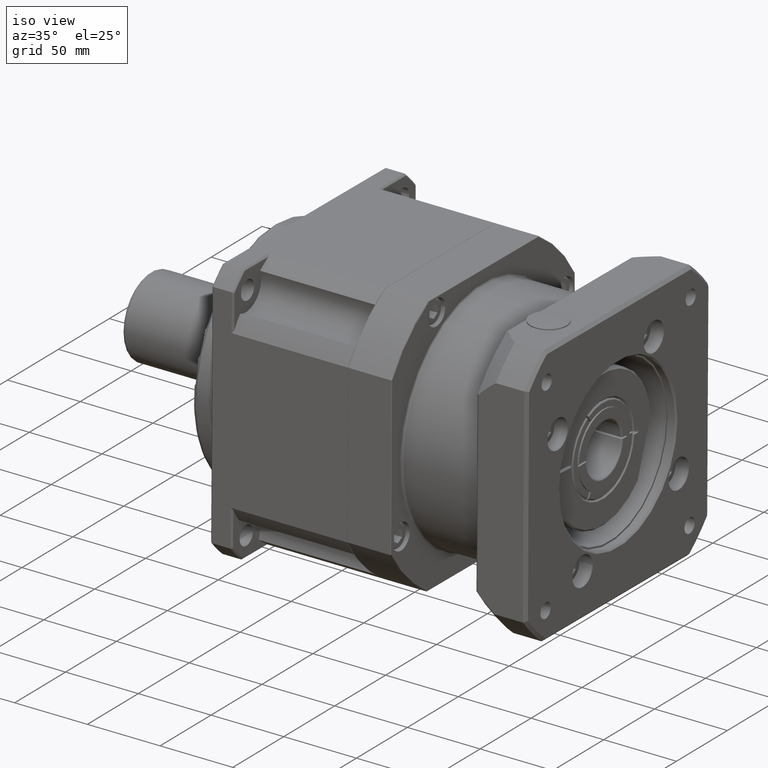
[diagram: clean part render]
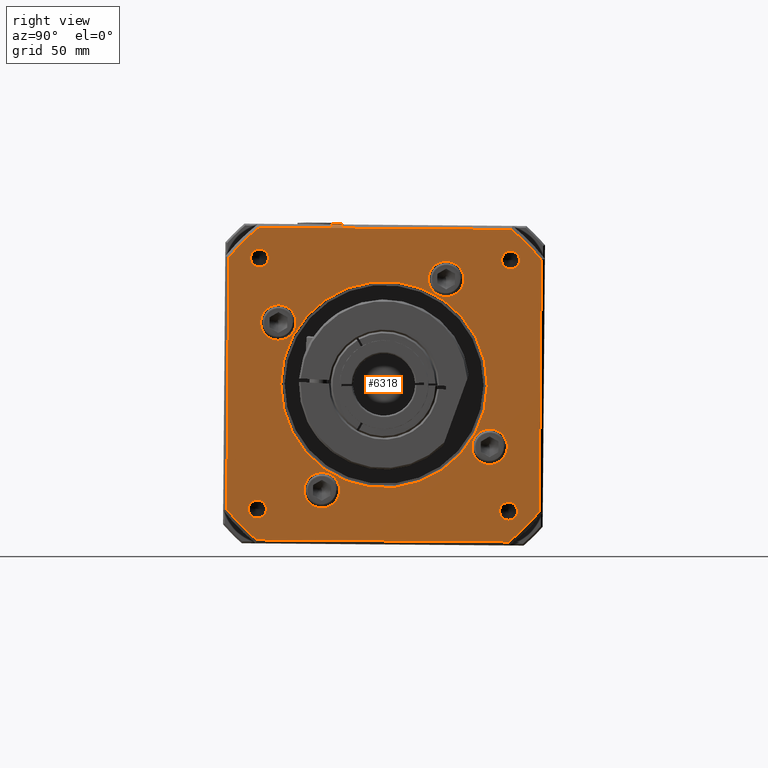
[diagram: tour spotlight — one face highlighted and labeled with its STEP entity id]
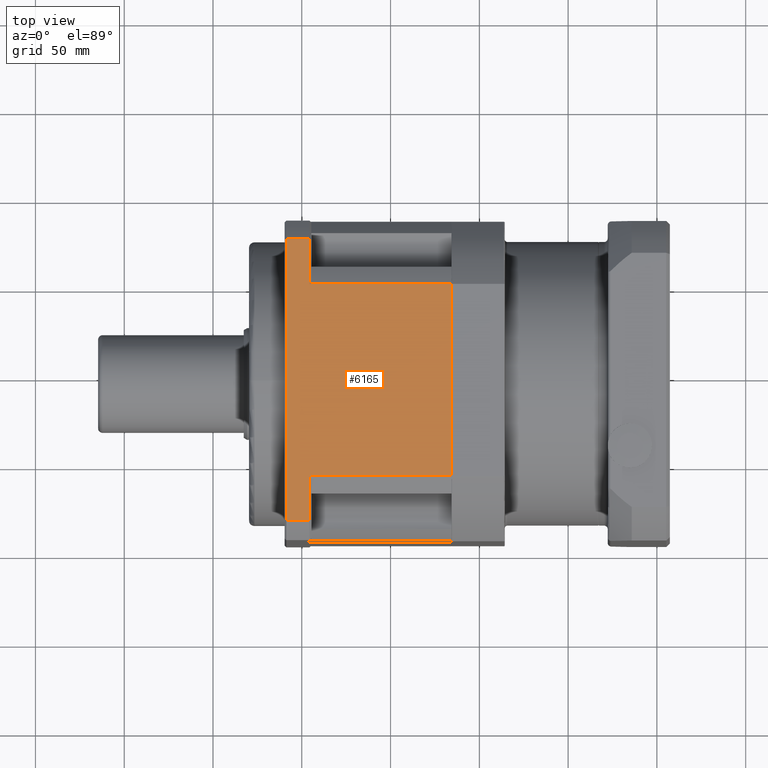
[diagram: tour spotlight — one face highlighted and labeled with its STEP entity id]
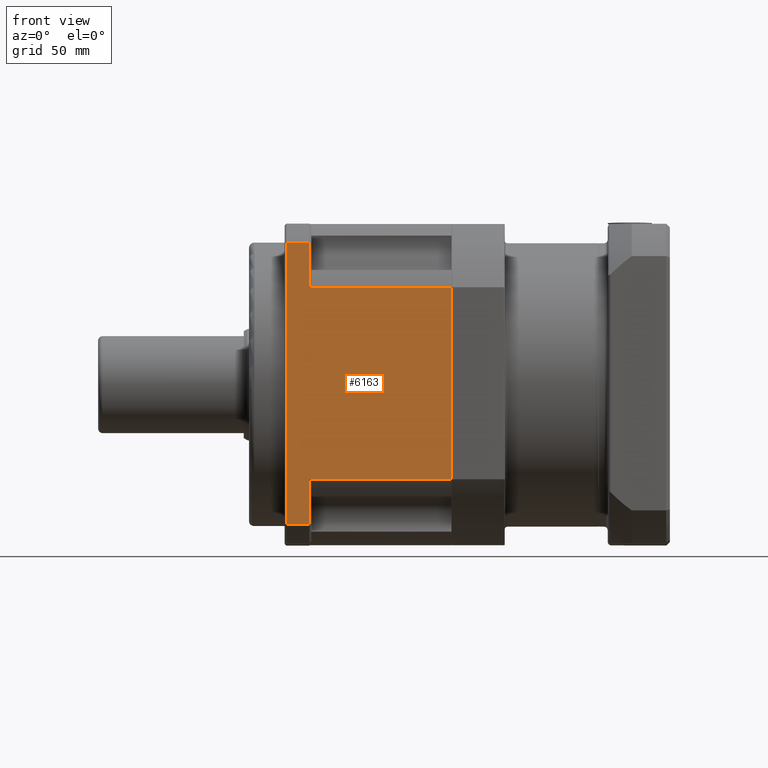
[diagram: tour spotlight — one face highlighted and labeled with its STEP entity id]
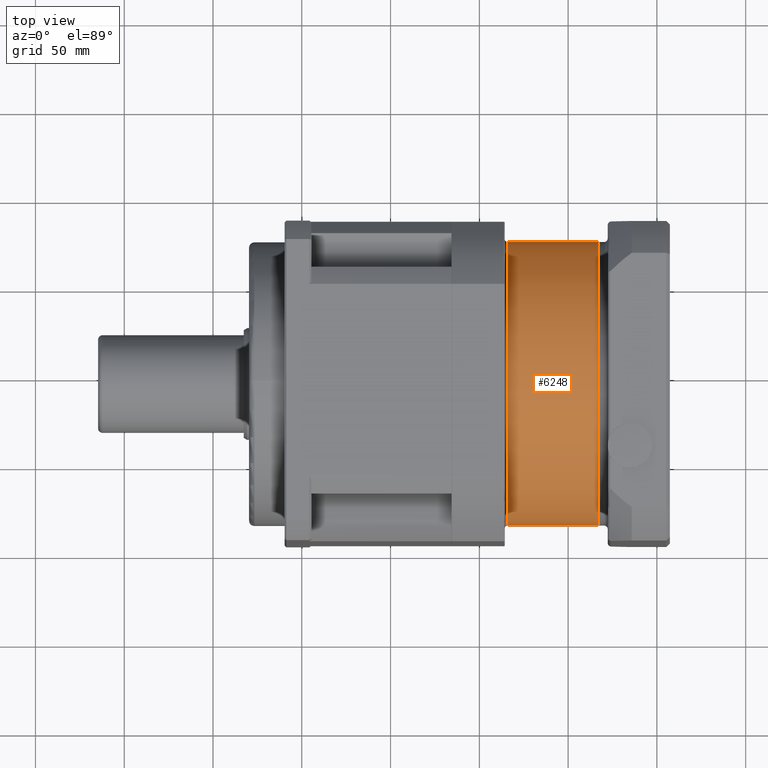
[diagram: tour spotlight — one face highlighted and labeled with its STEP entity id]
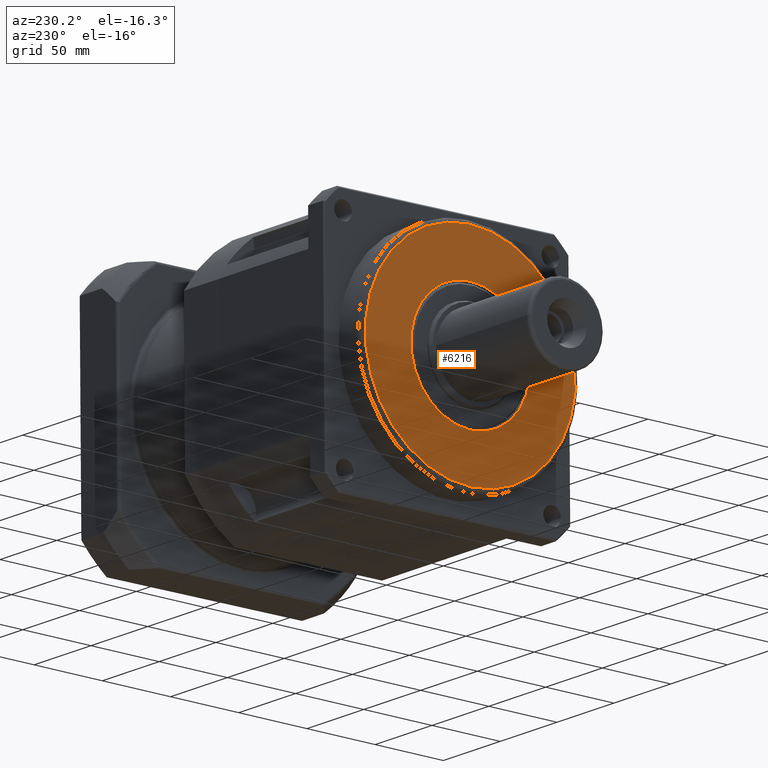
[diagram: tour spotlight — one face highlighted and labeled with its STEP entity id]
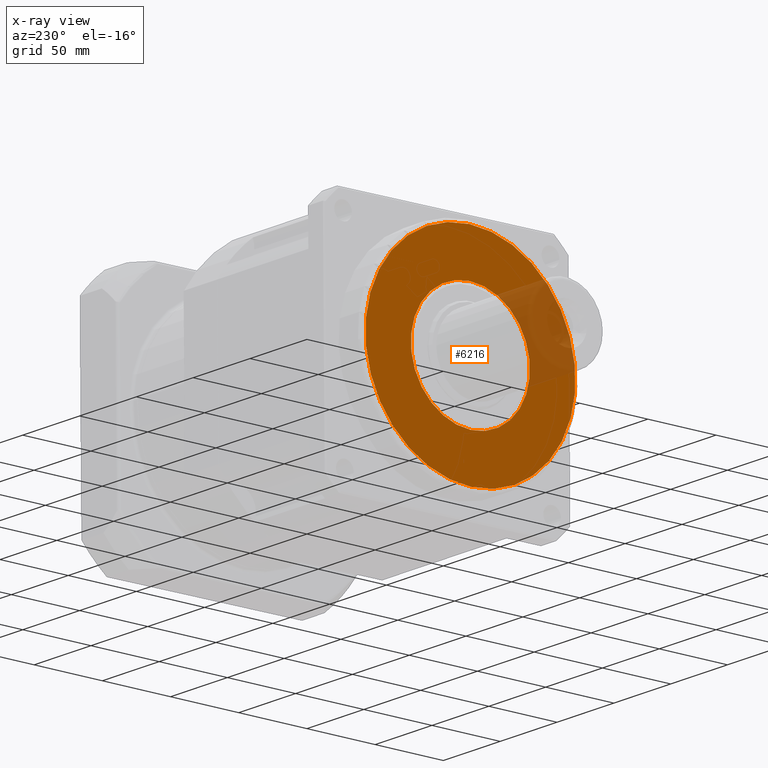
[diagram: x-ray of the same camera — body ghosted, this tour face saturated]
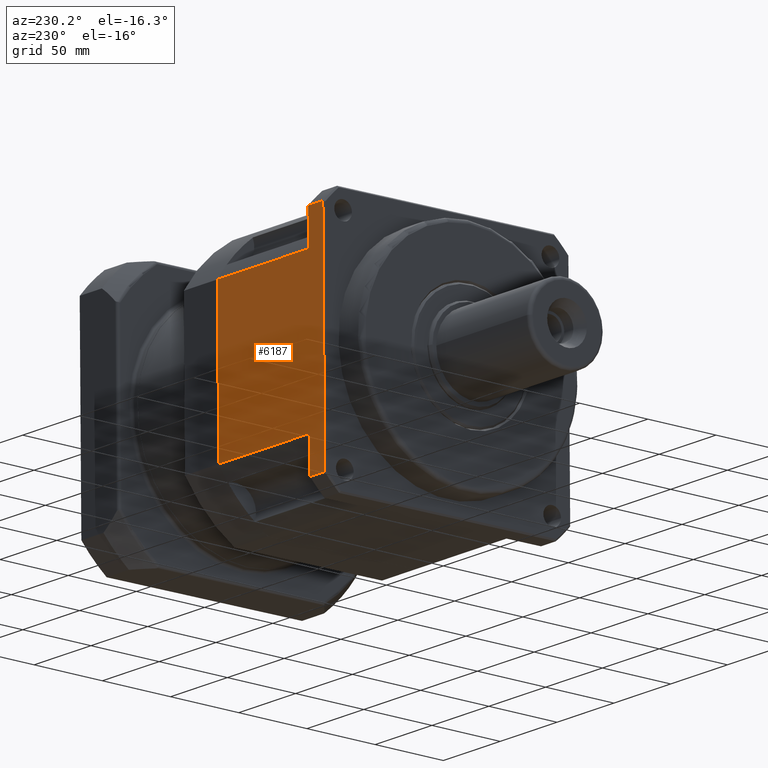
[diagram: tour spotlight — one face highlighted and labeled with its STEP entity id]
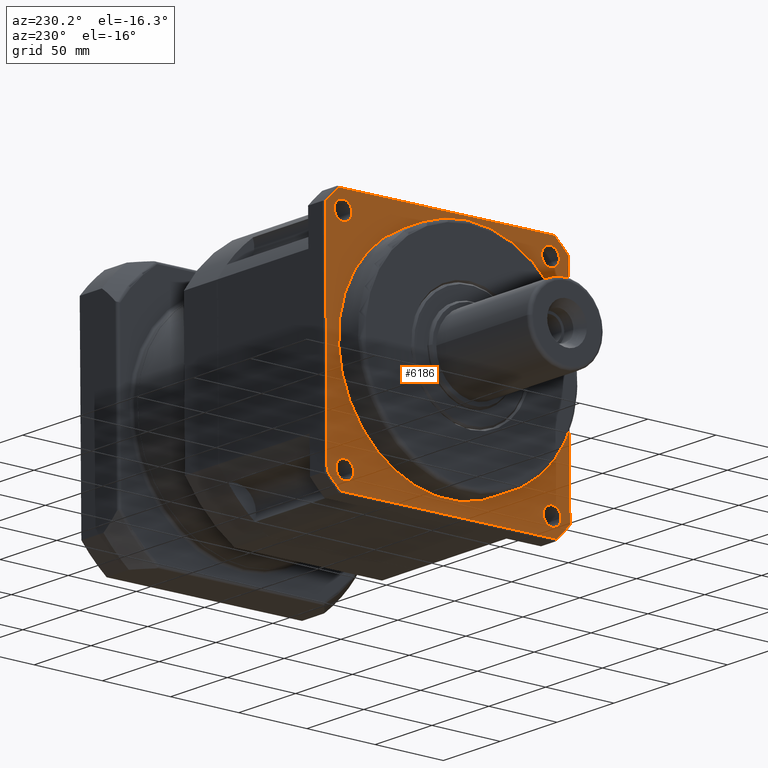
[diagram: tour spotlight — one face highlighted and labeled with its STEP entity id]
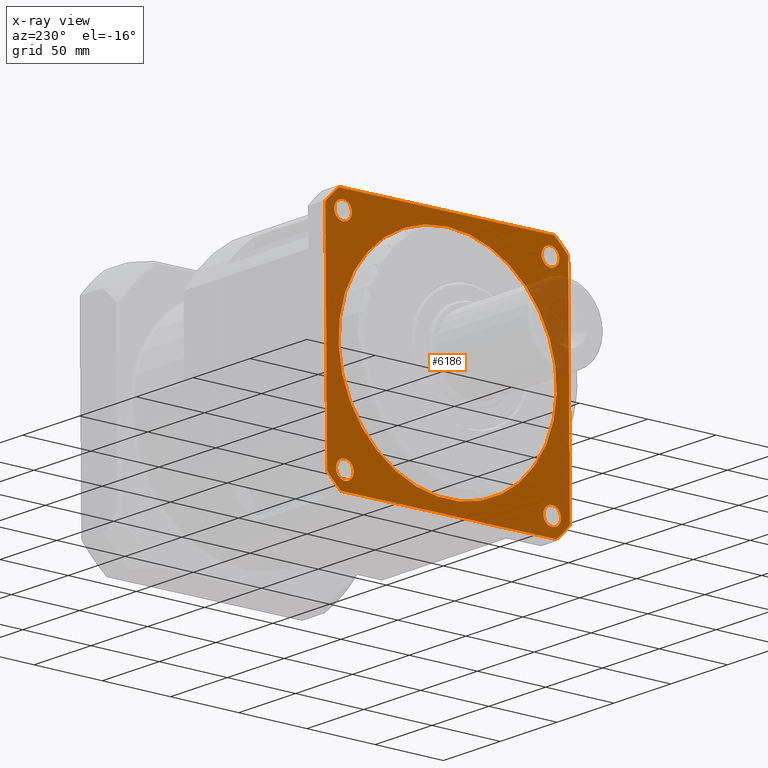
[diagram: x-ray of the same camera — body ghosted, this tour face saturated]
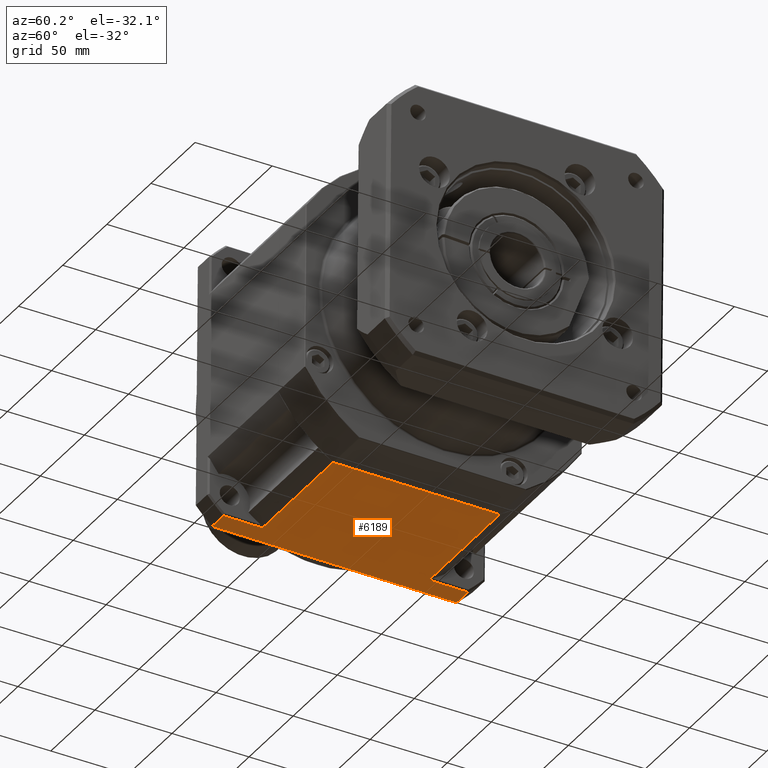
[diagram: tour spotlight — one face highlighted and labeled with its STEP entity id]
A machine part: a face-by-face anatomy tour. The part has 418 B-rep faces; the first image is the clean iso view, then the 8 largest visible faces are spotlighted one at a time (largest first), each with its STEP entity span.

Face 1 — right view, entity #6318. In plain terms, the highlighted planar face has unit normal (1, -0, -0).
Definition (entity closure, byte-faithful):
#435=LINE('',#11022,#739);
#436=LINE('',#11040,#740);
#437=LINE('',#11050,#741);
#438=LINE('',#11064,#742);
#739=VECTOR('',#8654,141.774468787578);
#740=VECTOR('',#8661,141.774468787578);
#741=VECTOR('',#8668,141.774468787578);
#742=VECTOR('',#8675,141.774468787578);
#1037=PLANE('',#7045);
#1208=FACE_BOUND('',#2133,.T.);
#1209=FACE_BOUND('',#2134,.T.);
#1210=FACE_BOUND('',#2135,.T.);
#1211=FACE_BOUND('',#2136,.T.);
#1212=FACE_BOUND('',#2137,.T.);
#1213=FACE_BOUND('',#2138,.T.);
#1214=FACE_BOUND('',#2139,.T.);
#1215=FACE_BOUND('',#2140,.T.);
#1216=FACE_BOUND('',#2141,.T.);
#1594=FACE_OUTER_BOUND('',#2132,.T.);
#2132=EDGE_LOOP('',(#5307,#5308,#5309,#5310,#5311,#5312,#5313,#5314));
#2133=EDGE_LOOP('',(#5315));
#2134=EDGE_LOOP('',(#5316));
#2135=EDGE_LOOP('',(#5317));
#2136=EDGE_LOOP('',(#5318));
#2137=EDGE_LOOP('',(#5319));
#2138=EDGE_LOOP('',(#5320));
#2139=EDGE_LOOP('',(#5321));
#2140=EDGE_LOOP('',(#5322));
#2141=EDGE_LOOP('',(#5323));
#2540=CIRCLE('',#6956,10.);
#2542=CIRCLE('',#6960,10.);
#2545=CIRCLE('',#6965,10.);
#2547=CIRCLE('',#6969,10.);
#2550=CIRCLE('',#6974,5.053);
#2552=CIRCLE('',#6978,5.053);
#2554=CIRCLE('',#6982,5.053);
#2556=CIRCLE('',#6986,5.053);
#2580=CIRCLE('',#7033,113.);
#2581=CIRCLE('',#7036,113.);
#2582=CIRCLE('',#7039,113.);
#2583=CIRCLE('',#7042,113.);
#2585=CIRCLE('',#7046,58.15);
#3046=VERTEX_POINT('',#10714);
#3048=VERTEX_POINT('',#10720);
#3051=VERTEX_POINT('',#10728);
#3053=VERTEX_POINT('',#10734);
#3056=VERTEX_POINT('',#10742);
#3058=VERTEX_POINT('',#10748);
#3060=VERTEX_POINT('',#10754);
#3062=VERTEX_POINT('',#10760);
#3097=VERTEX_POINT('',#11016);
#3098=VERTEX_POINT('',#11021);
#3099=VERTEX_POINT('',#11028);
#3100=VERTEX_POINT('',#11035);
#3101=VERTEX_POINT('',#11042);
#3102=VERTEX_POINT('',#11049);
#3103=VERTEX_POINT('',#11056);
#3104=VERTEX_POINT('',#11063);
#3106=VERTEX_POINT('',#11075);
#3788=EDGE_CURVE('',#3046,#3046,#2540,.T.);
#3790=EDGE_CURVE('',#3048,#3048,#2542,.T.);
#3793=EDGE_CURVE('',#3051,#3051,#2545,.T.);
#3795=EDGE_CURVE('',#3053,#3053,#2547,.T.);
#3798=EDGE_CURVE('',#3056,#3056,#2550,.T.);
#3800=EDGE_CURVE('',#3058,#3058,#2552,.T.);
#3802=EDGE_CURVE('',#3060,#3060,#2554,.T.);
#3804=EDGE_CURVE('',#3062,#3062,#2556,.T.);
#3860=EDGE_CURVE('',#3097,#3098,#435,.T.);
#3863=EDGE_CURVE('',#3099,#3097,#2580,.T.);
#3865=EDGE_CURVE('',#3100,#3099,#436,.T.);
#3866=EDGE_CURVE('',#3101,#3100,#2581,.T.);
#3868=EDGE_CURVE('',#3102,#3101,#437,.T.);
#3870=EDGE_CURVE('',#3103,#3102,#2582,.T.);
#3872=EDGE_CURVE('',#3104,#3103,#438,.T.);
#3874=EDGE_CURVE('',#3098,#3104,#2583,.T.);
#3876=EDGE_CURVE('',#3106,#3106,#2585,.T.);
#5307=ORIENTED_EDGE('',*,*,#3874,.F.);
#5308=ORIENTED_EDGE('',*,*,#3860,.F.);
#5309=ORIENTED_EDGE('',*,*,#3863,.F.);
#5310=ORIENTED_EDGE('',*,*,#3865,.F.);
#5311=ORIENTED_EDGE('',*,*,#3866,.F.);
#5312=ORIENTED_EDGE('',*,*,#3868,.F.);
#5313=ORIENTED_EDGE('',*,*,#3870,.F.);
#5314=ORIENTED_EDGE('',*,*,#3872,.F.);
#5315=ORIENTED_EDGE('',*,*,#3804,.T.);
#5316=ORIENTED_EDGE('',*,*,#3802,.T.);
#5317=ORIENTED_EDGE('',*,*,#3800,.T.);
#5318=ORIENTED_EDGE('',*,*,#3798,.T.);
#5319=ORIENTED_EDGE('',*,*,#3795,.T.);
#5320=ORIENTED_EDGE('',*,*,#3793,.T.);
#5321=ORIENTED_EDGE('',*,*,#3790,.T.);
#5322=ORIENTED_EDGE('',*,*,#3788,.T.);
#5323=ORIENTED_EDGE('',*,*,#3876,.F.);
#6318=ADVANCED_FACE('',(#1594,#1208,#1209,#1210,#1211,#1212,#1213,#1214,
#1215,#1216),#1037,.T.);
#6956=AXIS2_PLACEMENT_3D('',#10715,#8487,#8488);
#6960=AXIS2_PLACEMENT_3D('',#10721,#8495,#8496);
#6965=AXIS2_PLACEMENT_3D('',#10729,#8505,#8506);
#6969=AXIS2_PLACEMENT_3D('',#10735,#8513,#8514);
#6974=AXIS2_PLACEMENT_3D('',#10743,#8523,#8524);
#6978=AXIS2_PLACEMENT_3D('',#10749,#8531,#8532);
#6982=AXIS2_PLACEMENT_3D('',#10755,#8539,#8540);
#6986=AXIS2_PLACEMENT_3D('',#10761,#8547,#8548);
#7033=AXIS2_PLACEMENT_3D('',#11033,#8657,#8658);
#7036=AXIS2_PLACEMENT_3D('',#11043,#8664,#8665);
#7039=AXIS2_PLACEMENT_3D('',#11057,#8671,#8672);
#7042=AXIS2_PLACEMENT_3D('',#11070,#8678,#8679);
#7045=AXIS2_PLACEMENT_3D('',#11074,#8684,#8685);
#7046=AXIS2_PLACEMENT_3D('',#11076,#8686,#8687);
#8487=DIRECTION('center_axis',(-1.,8.09975041207195E-17,3.54145049662604E-16));
#8488=DIRECTION('ref_axis',(3.5481410443836E-16,0.00841499871867007,0.999964593271464));
#8495=DIRECTION('center_axis',(-1.,8.09975041207195E-17,3.54145049662604E-16));
#8496=DIRECTION('ref_axis',(-7.80145061249448E-17,-0.999964593271464,0.00841499871867013));
#8505=DIRECTION('center_axis',(-1.,8.09975041207195E-17,3.54145049662604E-16));
#8506=DIRECTION('ref_axis',(-3.5481410443836E-16,-0.00841499871867019,-0.999964593271464));
#8513=DIRECTION('center_axis',(-1.,8.09975041207195E-17,3.54145049662604E-16));
#8514=DIRECTION('ref_axis',(7.80145061249448E-17,0.999964593271464,-0.00841499871867025));
#8523=DIRECTION('center_axis',(-1.,8.09975041207195E-17,3.54145049662604E-16));
#8524=DIRECTION('ref_axis',(3.5481410443836E-16,0.00841499871867007,0.999964593271464));
#8531=DIRECTION('center_axis',(-1.,8.09975041207195E-17,3.54145049662604E-16));
#8532=DIRECTION('ref_axis',(-7.80145061249448E-17,-0.999964593271464,0.00841499871867013));
#8539=DIRECTION('center_axis',(-1.,8.09975041207195E-17,3.54145049662604E-16));
#8540=DIRECTION('ref_axis',(-3.5481410443836E-16,-0.00841499871867019,-0.999964593271464));
#8547=DIRECTION('center_axis',(-1.,8.09975041207195E-17,3.54145049662604E-16));
#8548=DIRECTION('ref_axis',(7.80145061249447E-17,0.999964593271464,-0.00841499871867025));
#8654=DIRECTION('',(7.80145061249449E-17,0.999964593271464,-0.00841499871866987));
#8657=DIRECTION('center_axis',(-1.,8.09975041207195E-17,3.54145049662604E-16));
#8658=DIRECTION('ref_axis',(3.5481410443836E-16,0.00841499871867007,0.999964593271464));
#8661=DIRECTION('',(3.5481410443836E-16,0.00841499871866987,0.999964593271464));
#8664=DIRECTION('center_axis',(-1.,8.09975041207195E-17,3.54145049662604E-16));
#8665=DIRECTION('ref_axis',(-3.5481410443836E-16,-0.00841499871867007,-0.999964593271464));
#8668=DIRECTION('',(-7.80145061249448E-17,-0.999964593271464,0.00841499871867007));
#8671=DIRECTION('center_axis',(-1.,8.09975041207195E-17,3.54145049662604E-16));
#8672=DIRECTION('ref_axis',(-3.5481410443836E-16,-0.00841499871867007,-0.999964593271464));
#8675=DIRECTION('',(-3.54814104438359E-16,-0.00841499871866997,-0.999964593271464));
#8678=DIRECTION('center_axis',(-1.,8.09975041207195E-17,3.54145049662604E-16));
#8679=DIRECTION('ref_axis',(3.5481410443836E-16,0.00841499871867007,0.999964593271464));
#8684=DIRECTION('center_axis',(1.,-8.09975041207195E-17,-3.54145049662604E-16));
#8685=DIRECTION('ref_axis',(0.,0.00841499871866915,0.999964593271464));
#8686=DIRECTION('center_axis',(1.,-8.09975041207195E-17,-3.54145049662604E-16));
#8687=DIRECTION('ref_axis',(7.80145061249448E-17,0.999964593271464,-0.00841499871867007));
#10714=CARTESIAN_POINT('',(57.302928487223,-93.888945751623,24.1905496875197));
#10715=CARTESIAN_POINT('Origin',(57.302928487223,-93.9730957388097,14.1909037548051));
#10720=CARTESIAN_POINT('',(57.302928487223,-128.434438269511,108.739996443229));
#10721=CARTESIAN_POINT('Origin',(57.302928487223,-118.434792336797,108.655846456042));
#10728=CARTESIAN_POINT('',(57.302928487223,-212.983885025221,74.1945039253405));
#10729=CARTESIAN_POINT('Origin',(57.302928487223,-212.899735038034,84.1941498580552));
#10734=CARTESIAN_POINT('',(57.302928487223,-178.438392507332,-10.3549428303687));
#10735=CARTESIAN_POINT('Origin',(57.302928487223,-188.438038440047,-10.2707928431821));
#10742=CARTESIAN_POINT('',(57.302928487223,-83.2807501807911,-17.057856854404));
#10743=CARTESIAN_POINT('Origin',(57.302928487223,-83.3232711693166,-22.1106779442047));
#10748=CARTESIAN_POINT('',(57.302928487223,-87.1860317275878,119.348192014061));
#10749=CARTESIAN_POINT('Origin',(57.302928487223,-82.1332106377871,119.305671025535));
#10754=CARTESIAN_POINT('',(57.302928487223,-223.592080596053,115.442910467264));
#10755=CARTESIAN_POINT('Origin',(57.302928487223,-223.549559607527,120.495731557065));
#10760=CARTESIAN_POINT('',(57.302928487223,-219.686799049256,-20.9631384012006));
#10761=CARTESIAN_POINT('Origin',(57.302928487223,-224.739620139057,-20.9206174126752));
#11016=CARTESIAN_POINT('',(57.302928487223,-223.580620009903,137.785927000913));
#11021=CARTESIAN_POINT('',(57.302928487223,-81.8111709924546,136.592895027725));
#11022=CARTESIAN_POINT('',(57.302928487223,-197.694302198395,137.568085956659));
#11028=CARTESIAN_POINT('',(57.302928487223,-240.836783609717,120.817771202397));
#11033=CARTESIAN_POINT('Origin',(57.302928487223,-153.436415388422,49.1925268064301));
#11035=CARTESIAN_POINT('',(57.302928487223,-242.029815582904,-20.9516778150513));
#11040=CARTESIAN_POINT('',(57.302928487223,-241.811974538651,4.93463999645717));
#11042=CARTESIAN_POINT('',(57.302928487223,-225.061659784389,-38.207841414865));
#11043=CARTESIAN_POINT('Origin',(57.302928487223,-153.436415388422,49.1925268064301));
#11049=CARTESIAN_POINT('',(57.302928487223,-83.2922107669405,-39.4008733880526));
#11050=CARTESIAN_POINT('',(57.302928487223,-109.178528578449,-39.1830323437989));
#11056=CARTESIAN_POINT('',(57.302928487223,-66.0360471671268,-22.4327175895371));
#11057=CARTESIAN_POINT('Origin',(57.302928487223,-153.436415388422,49.1925268064301));
#11063=CARTESIAN_POINT('',(57.302928487223,-64.8430151939392,119.336731427911));
#11064=CARTESIAN_POINT('',(57.302928487223,-65.0608562381928,93.450413616403));
#11070=CARTESIAN_POINT('Origin',(57.302928487223,-153.436415388422,49.1925268064301));
#11074=CARTESIAN_POINT('Origin',(57.302928487223,-153.436415388422,49.1925268064301));
#11075=CARTESIAN_POINT('',(57.302928487223,-211.584356487158,49.6818589819208));
#11076=CARTESIAN_POINT('Origin',(57.302928487223,-153.436415388422,49.1925268064301));

Face 2 — top view, entity #6165. In plain terms, the highlighted planar face has unit normal (0, 0.0084, 1).
Definition (entity closure, byte-faithful):
#346=LINE('',#10012,#650);
#347=LINE('',#10016,#651);
#348=LINE('',#10018,#652);
#349=LINE('',#10020,#653);
#350=LINE('',#10021,#654);
#351=LINE('',#10023,#655);
#352=LINE('',#10025,#656);
#353=LINE('',#10026,#657);
#650=VECTOR('',#7951,13.);
#651=VECTOR('',#7954,80.);
#652=VECTOR('',#7955,108.16653826392);
#653=VECTOR('',#7956,80.);
#654=VECTOR('',#7957,25.2892701999779);
#655=VECTOR('',#7958,158.745078663875);
#656=VECTOR('',#7959,13.);
#657=VECTOR('',#7960,25.2892701999779);
#978=PLANE('',#6725);
#1441=FACE_OUTER_BOUND('',#1920,.T.);
#1920=EDGE_LOOP('',(#4688,#4689,#4690,#4691,#4692,#4693,#4694,#4695));
#2892=VERTEX_POINT('',#10006);
#2894=VERTEX_POINT('',#10010);
#2895=VERTEX_POINT('',#10014);
#2896=VERTEX_POINT('',#10015);
#2897=VERTEX_POINT('',#10017);
#2898=VERTEX_POINT('',#10019);
#2899=VERTEX_POINT('',#10022);
#2900=VERTEX_POINT('',#10024);
#3559=EDGE_CURVE('',#2892,#2894,#346,.T.);
#3560=EDGE_CURVE('',#2895,#2896,#347,.T.);
#3561=EDGE_CURVE('',#2897,#2896,#348,.T.);
#3562=EDGE_CURVE('',#2897,#2898,#349,.T.);
#3563=EDGE_CURVE('',#2892,#2898,#350,.T.);
#3564=EDGE_CURVE('',#2899,#2894,#351,.T.);
#3565=EDGE_CURVE('',#2899,#2900,#352,.T.);
#3566=EDGE_CURVE('',#2895,#2900,#353,.T.);
#4688=ORIENTED_EDGE('',*,*,#3560,.T.);
#4689=ORIENTED_EDGE('',*,*,#3561,.F.);
#4690=ORIENTED_EDGE('',*,*,#3562,.T.);
#4691=ORIENTED_EDGE('',*,*,#3563,.F.);
#4692=ORIENTED_EDGE('',*,*,#3559,.T.);
#4693=ORIENTED_EDGE('',*,*,#3564,.F.);
#4694=ORIENTED_EDGE('',*,*,#3565,.T.);
#4695=ORIENTED_EDGE('',*,*,#3566,.F.);
#6165=ADVANCED_FACE('',(#1441),#978,.T.);
#6725=AXIS2_PLACEMENT_3D('',#10013,#7952,#7953);
#7951=DIRECTION('',(-1.,-1.93538914479471E-16,4.65376321555618E-16));
#7952=DIRECTION('center_axis',(4.63731214385177E-16,0.00841499871866801,
0.999964593271464));
#7953=DIRECTION('ref_axis',(0.,0.999964593271464,-0.00841499871866914));
#7954=DIRECTION('',(1.,1.93538914479471E-16,-4.65376321555618E-16));
#7955=DIRECTION('',(1.97448203049254E-16,-0.999964593271464,0.00841499871866801));
#7956=DIRECTION('',(-1.,-1.93538914479471E-16,4.65376321555618E-16));
#7957=DIRECTION('',(1.97448203049254E-16,-0.999964593271464,0.00841499871866801));
#7958=DIRECTION('',(-1.97448203049254E-16,0.999964593271464,-0.00841499871866801));
#7959=DIRECTION('',(1.,1.93538914479471E-16,-4.65376321555618E-16));
#7960=DIRECTION('',(1.97448203049254E-16,-0.999964593271464,0.00841499871866801));
#10006=CARTESIAN_POINT('',(-145.697071512777,-73.3093364937574,138.521420384086));
#10010=CARTESIAN_POINT('',(-158.697071512777,-73.3093364937574,138.521420384086));
#10012=CARTESIAN_POINT('',(-65.6970715127765,-73.3093364937574,138.521420384086));
#10013=CARTESIAN_POINT('Origin',(-65.6970715127765,-242.675878898174,139.946690085542));
#10014=CARTESIAN_POINT('',(-145.697071512777,-206.760419724073,139.644450841309));
#10015=CARTESIAN_POINT('',(-65.6970715127765,-206.760419724073,139.644450841309));
#10016=CARTESIAN_POINT('',(-65.6970715127765,-206.760419724073,139.644450841309));
#10017=CARTESIAN_POINT('',(-65.6970715127765,-98.5977112834104,138.734229560415));
#10018=CARTESIAN_POINT('',(-65.6970715127765,-62.68225210931,138.431990316182));
#10019=CARTESIAN_POINT('',(-145.697071512777,-98.5977112834104,138.734229560415));
#10020=CARTESIAN_POINT('',(-65.6970715127765,-98.5977112834104,138.734229560415));
#10021=CARTESIAN_POINT('',(-145.697071512777,-197.677472200958,139.568015143202));
#10022=CARTESIAN_POINT('',(-158.697071512777,-232.048794513726,139.857260017638));
#10023=CARTESIAN_POINT('',(-158.697071512777,-197.677472200958,139.568015143202));
#10024=CARTESIAN_POINT('',(-145.697071512777,-232.048794513726,139.857260017638));
#10025=CARTESIAN_POINT('',(-65.6970715127765,-232.048794513726,139.857260017638));
#10026=CARTESIAN_POINT('',(-145.697071512777,-197.677472200958,139.568015143202));

Face 3 — front view, entity #6163. In plain terms, the highlighted planar face has unit normal (0, -1, 0.0084).
Definition (entity closure, byte-faithful):
#337=LINE('',#9990,#641);
#338=LINE('',#9992,#642);
#339=LINE('',#9994,#643);
#340=LINE('',#9996,#644);
#341=LINE('',#9998,#645);
#342=LINE('',#10000,#646);
#343=LINE('',#10002,#647);
#344=LINE('',#10003,#648);
#641=VECTOR('',#7936,25.2892701999779);
#642=VECTOR('',#7937,13.);
#643=VECTOR('',#7938,158.745078663875);
#644=VECTOR('',#7939,13.);
#645=VECTOR('',#7940,25.2892701999779);
#646=VECTOR('',#7941,80.);
#647=VECTOR('',#7942,108.16653826392);
#648=VECTOR('',#7943,80.);
#977=PLANE('',#6721);
#1439=FACE_OUTER_BOUND('',#1918,.T.);
#1918=EDGE_LOOP('',(#4676,#4677,#4678,#4679,#4680,#4681,#4682,#4683));
#2883=VERTEX_POINT('',#9988);
#2884=VERTEX_POINT('',#9989);
#2885=VERTEX_POINT('',#9991);
#2886=VERTEX_POINT('',#9993);
#2887=VERTEX_POINT('',#9995);
#2888=VERTEX_POINT('',#9997);
#2889=VERTEX_POINT('',#9999);
#2890=VERTEX_POINT('',#10001);
#3548=EDGE_CURVE('',#2883,#2884,#337,.T.);
#3549=EDGE_CURVE('',#2883,#2885,#338,.T.);
#3550=EDGE_CURVE('',#2886,#2885,#339,.T.);
#3551=EDGE_CURVE('',#2886,#2887,#340,.T.);
#3552=EDGE_CURVE('',#2888,#2887,#341,.T.);
#3553=EDGE_CURVE('',#2888,#2889,#342,.T.);
#3554=EDGE_CURVE('',#2890,#2889,#343,.T.);
#3555=EDGE_CURVE('',#2890,#2884,#344,.T.);
#4676=ORIENTED_EDGE('',*,*,#3548,.F.);
#4677=ORIENTED_EDGE('',*,*,#3549,.T.);
#4678=ORIENTED_EDGE('',*,*,#3550,.F.);
#4679=ORIENTED_EDGE('',*,*,#3551,.T.);
#4680=ORIENTED_EDGE('',*,*,#3552,.F.);
#4681=ORIENTED_EDGE('',*,*,#3553,.T.);
#4682=ORIENTED_EDGE('',*,*,#3554,.F.);
#4683=ORIENTED_EDGE('',*,*,#3555,.T.);
#6163=ADVANCED_FACE('',(#1439),#977,.T.);
#6721=AXIS2_PLACEMENT_3D('',#9987,#7934,#7935);
#7934=DIRECTION('center_axis',(1.97448203049254E-16,-0.999964593271464,
0.00841499871866801));
#7935=DIRECTION('ref_axis',(0.,0.00841499871866915,0.999964593271464));
#7936=DIRECTION('',(-4.63731214385177E-16,-0.00841499871866801,-0.999964593271464));
#7937=DIRECTION('',(-1.,-1.93538914479471E-16,4.65376321555618E-16));
#7938=DIRECTION('',(4.63731214385177E-16,0.00841499871866801,0.999964593271464));
#7939=DIRECTION('',(1.,1.93538914479471E-16,-4.65376321555618E-16));
#7940=DIRECTION('',(-4.63731214385176E-16,-0.00841499871866801,-0.999964593271464));
#7941=DIRECTION('',(1.,1.93538914479471E-16,-4.65376321555618E-16));
#7942=DIRECTION('',(-4.63731214385177E-16,-0.00841499871866801,-0.999964593271464));
#7943=DIRECTION('',(-1.,-1.93538914479471E-16,4.65376321555618E-16));
#9987=CARTESIAN_POINT('Origin',(-65.6970715127766,-244.190578667534,-40.0469367033215));
#9988=CARTESIAN_POINT('',(-145.697071512777,-242.765308966078,129.319605701095));
#9989=CARTESIAN_POINT('',(-145.697071512777,-242.978118142407,104.031230911442));
#9990=CARTESIAN_POINT('',(-145.697071512777,-243.811903725194,4.95146999389441));
#9991=CARTESIAN_POINT('',(-158.697071512777,-242.765308966078,129.319605701095));
#9992=CARTESIAN_POINT('',(-65.6970715127765,-242.765308966078,129.319605701095));
#9993=CARTESIAN_POINT('',(-158.697071512777,-244.101148599629,-29.4198523188741));
#9994=CARTESIAN_POINT('',(-158.697071512777,-243.811903725194,4.95146999389442));
#9995=CARTESIAN_POINT('',(-145.697071512777,-244.101148599629,-29.4198523188741));
#9996=CARTESIAN_POINT('',(-65.6970715127766,-244.101148599629,-29.4198523188741));
#9997=CARTESIAN_POINT('',(-145.697071512777,-243.888339423301,-4.13147752922106));
#9998=CARTESIAN_POINT('',(-145.697071512777,-243.811903725194,4.95146999389441));
#9999=CARTESIAN_POINT('',(-65.6970715127766,-243.888339423301,-4.1314775292211));
#10000=CARTESIAN_POINT('',(-65.6970715127766,-243.888339423301,-4.1314775292211));
#10001=CARTESIAN_POINT('',(-65.6970715127765,-242.978118142407,104.031230911442));
#10002=CARTESIAN_POINT('',(-65.6970715127765,-242.675878898174,139.946690085542));
#10003=CARTESIAN_POINT('',(-65.6970715127765,-242.978118142407,104.031230911442));

Face 4 — top view, entity #6248. In plain terms, the highlighted cylindrical surface (bore or boss wall) has radius 80 mm, axis along (1, 0, -0).
Definition (entity closure, byte-faithful):
#1185=FACE_BOUND('',#2040,.T.);
#1524=FACE_OUTER_BOUND('',#2039,.T.);
#2039=EDGE_LOOP('',(#5047));
#2040=EDGE_LOOP('',(#5048));
#2512=CIRCLE('',#6891,80.);
#2522=CIRCLE('',#6913,80.);
#3007=VERTEX_POINT('',#10406);
#3024=VERTEX_POINT('',#10567);
#3721=EDGE_CURVE('',#3007,#3007,#2512,.T.);
#3749=EDGE_CURVE('',#3024,#3024,#2522,.T.);
#5047=ORIENTED_EDGE('',*,*,#3721,.F.);
#5048=ORIENTED_EDGE('',*,*,#3749,.F.);
#5667=CYLINDRICAL_SURFACE('',#6912,80.);
#6248=ADVANCED_FACE('',(#1524,#1185),#5667,.T.);
#6891=AXIS2_PLACEMENT_3D('',#10407,#8335,#8336);
#6912=AXIS2_PLACEMENT_3D('',#10566,#8387,#8388);
#6913=AXIS2_PLACEMENT_3D('',#10568,#8389,#8390);
#8335=DIRECTION('center_axis',(-1.,-3.19739126628658E-17,3.41308894495248E-16));
#8336=DIRECTION('ref_axis',(3.41027749429785E-16,0.00841499871866983,0.999964593271464));
#8387=DIRECTION('center_axis',(1.,3.19739126628658E-17,-3.41308894495248E-16));
#8388=DIRECTION('ref_axis',(3.41027749429785E-16,0.00841499871866983,0.999964593271464));
#8389=DIRECTION('center_axis',(1.,3.19739126628658E-17,-3.41308894495248E-16));
#8390=DIRECTION('ref_axis',(3.41027749429785E-16,0.00841499871866983,0.999964593271464));
#10406=CARTESIAN_POINT('',(-34.1970715127766,-154.109615285915,-30.804640655287));
#10407=CARTESIAN_POINT('Origin',(-34.1970715127766,-153.436415388422,49.1925268064302));
#10566=CARTESIAN_POINT('Origin',(-35.6970715127766,-153.436415388422,49.1925268064302));
#10567=CARTESIAN_POINT('',(16.8029284872234,-154.109615285915,-30.804640655287));
#10568=CARTESIAN_POINT('Origin',(16.8029284872234,-153.436415388422,49.1925268064302));

Face 5 — auxiliary view, entity #6216. An x-ray twin of the same camera follows (body ghosted, this face saturated) — the face is partly hidden behind the body. In plain terms, the highlighted planar face has unit normal (1, 0, -0).
Definition (entity closure, byte-faithful):
#999=PLANE('',#6844);
#1165=FACE_BOUND('',#1988,.T.);
#1492=FACE_OUTER_BOUND('',#1987,.T.);
#1987=EDGE_LOOP('',(#4924));
#1988=EDGE_LOOP('',(#4925));
#2471=CIRCLE('',#6799,43.6547005383793);
#2486=CIRCLE('',#6845,77.);
#2952=VERTEX_POINT('',#10163);
#2977=VERTEX_POINT('',#10321);
#3632=EDGE_CURVE('',#2952,#2952,#2471,.T.);
#3686=EDGE_CURVE('',#2977,#2977,#2486,.T.);
#4924=ORIENTED_EDGE('',*,*,#3686,.F.);
#4925=ORIENTED_EDGE('',*,*,#3632,.F.);
#6216=ADVANCED_FACE('',(#1492,#1165),#999,.F.);
#6799=AXIS2_PLACEMENT_3D('',#10164,#8119,#8120);
#6844=AXIS2_PLACEMENT_3D('',#10320,#8232,#8233);
#6845=AXIS2_PLACEMENT_3D('',#10322,#8234,#8235);
#8119=DIRECTION('center_axis',(-1.,-1.93538914479471E-16,4.65376321555618E-16));
#8120=DIRECTION('ref_axis',(-4.63731214385176E-16,-0.00841499871866801,
-0.999964593271464));
#8232=DIRECTION('center_axis',(1.,1.93538914479471E-16,-4.65376321555618E-16));
#8233=DIRECTION('ref_axis',(0.,-0.00841499871866915,-0.999964593271464));
#8234=DIRECTION('center_axis',(1.,1.93538914479471E-16,-4.65376321555618E-16));
#8235=DIRECTION('ref_axis',(-4.63731214385176E-16,-0.00841499871866801,
-0.999964593271464));
#10163=CARTESIAN_POINT('',(-179.697071512777,-153.069061139328,92.8456816746782));
#10164=CARTESIAN_POINT('Origin',(-179.697071512777,-153.436415388422,49.1925268064302));
#10320=CARTESIAN_POINT('Origin',(-179.697071512777,-153.436415388422,49.1925268064302));
#10321=CARTESIAN_POINT('',(-179.697071512777,-152.788460487085,126.189800488333));
#10322=CARTESIAN_POINT('Origin',(-179.697071512777,-153.436415388422,49.1925268064302));

Face 6 — auxiliary view, entity #6187. In plain terms, the highlighted planar face has unit normal (-0, 1, -0.0084).
Definition (entity closure, byte-faithful):
#345=LINE('',#10009,#649);
#356=LINE('',#10045,#660);
#364=LINE('',#10103,#668);
#370=LINE('',#10186,#674);
#371=LINE('',#10188,#675);
#372=LINE('',#10189,#676);
#373=LINE('',#10190,#677);
#374=LINE('',#10191,#678);
#649=VECTOR('',#7948,13.);
#660=VECTOR('',#7981,80.);
#668=VECTOR('',#8041,80.);
#674=VECTOR('',#8139,25.2892701999779);
#675=VECTOR('',#8140,13.);
#676=VECTOR('',#8141,158.745078663875);
#677=VECTOR('',#8142,25.2892701999779);
#678=VECTOR('',#8143,108.16653826392);
#981=PLANE('',#6806);
#1463=FACE_OUTER_BOUND('',#1953,.T.);
#1953=EDGE_LOOP('',(#4790,#4791,#4792,#4793,#4794,#4795,#4796,#4797));
#2891=VERTEX_POINT('',#10005);
#2893=VERTEX_POINT('',#10008);
#2906=VERTEX_POINT('',#10042);
#2907=VERTEX_POINT('',#10044);
#2930=VERTEX_POINT('',#10100);
#2931=VERTEX_POINT('',#10102);
#2962=VERTEX_POINT('',#10185);
#2963=VERTEX_POINT('',#10187);
#3557=EDGE_CURVE('',#2893,#2891,#345,.T.);
#3575=EDGE_CURVE('',#2907,#2906,#356,.T.);
#3603=EDGE_CURVE('',#2931,#2930,#364,.T.);
#3642=EDGE_CURVE('',#2962,#2930,#370,.T.);
#3643=EDGE_CURVE('',#2962,#2963,#371,.T.);
#3644=EDGE_CURVE('',#2893,#2963,#372,.T.);
#3645=EDGE_CURVE('',#2907,#2891,#373,.T.);
#3646=EDGE_CURVE('',#2931,#2906,#374,.T.);
#4790=ORIENTED_EDGE('',*,*,#3642,.F.);
#4791=ORIENTED_EDGE('',*,*,#3643,.T.);
#4792=ORIENTED_EDGE('',*,*,#3644,.F.);
#4793=ORIENTED_EDGE('',*,*,#3557,.T.);
#4794=ORIENTED_EDGE('',*,*,#3645,.F.);
#4795=ORIENTED_EDGE('',*,*,#3575,.T.);
#4796=ORIENTED_EDGE('',*,*,#3646,.F.);
#4797=ORIENTED_EDGE('',*,*,#3603,.T.);
#6187=ADVANCED_FACE('',(#1463),#981,.T.);
#6806=AXIS2_PLACEMENT_3D('',#10184,#8137,#8138);
#7948=DIRECTION('',(1.,1.93538914479471E-16,-4.65376321555618E-16));
#7981=DIRECTION('',(1.,1.93538914479471E-16,-4.65376321555618E-16));
#8041=DIRECTION('',(-1.,-1.93538914479471E-16,4.65376321555618E-16));
#8137=DIRECTION('center_axis',(-1.97448203049254E-16,0.999964593271464,
-0.00841499871866761));
#8138=DIRECTION('ref_axis',(0.,-0.00841499871866772,-0.999964593271464));
#8139=DIRECTION('',(4.63731214385177E-16,0.00841499871866761,0.999964593271464));
#8140=DIRECTION('',(-1.,-1.93538914479471E-16,4.65376321555618E-16));
#8141=DIRECTION('',(-4.63731214385177E-16,-0.00841499871866761,-0.999964593271464));
#8142=DIRECTION('',(4.63731214385177E-16,0.00841499871866761,0.999964593271464));
#8143=DIRECTION('',(4.63731214385177E-16,0.00841499871866761,0.999964593271464));
#10005=CARTESIAN_POINT('',(-145.697071512777,-62.7716821772145,127.804905931735));
#10008=CARTESIAN_POINT('',(-158.697071512777,-62.7716821772145,127.804905931735));
#10009=CARTESIAN_POINT('',(-65.6970715127765,-62.7716821772145,127.804905931734));
#10042=CARTESIAN_POINT('',(-65.6970715127766,-62.9844913535433,102.516531142081));
#10044=CARTESIAN_POINT('',(-145.697071512777,-62.9844913535433,102.516531142081));
#10045=CARTESIAN_POINT('',(-65.6970715127766,-62.9844913535433,102.516531142081));
#10100=CARTESIAN_POINT('',(-145.697071512777,-63.8947126344369,-5.64617729858127));
#10102=CARTESIAN_POINT('',(-65.6970715127766,-63.8947126344369,-5.64617729858131));
#10103=CARTESIAN_POINT('',(-65.6970715127766,-63.8947126344369,-5.64617729858131));
#10184=CARTESIAN_POINT('Origin',(-65.6970715127765,-62.68225210931,138.431990316182));
#10185=CARTESIAN_POINT('',(-145.697071512777,-64.1075218107658,-30.9345520882343));
#10186=CARTESIAN_POINT('',(-145.697071512777,-63.0609270516501,93.433583618966));
#10187=CARTESIAN_POINT('',(-158.697071512777,-64.1075218107658,-30.9345520882343));
#10188=CARTESIAN_POINT('',(-65.6970715127766,-64.1075218107657,-30.9345520882343));
#10189=CARTESIAN_POINT('',(-158.697071512777,-63.0609270516501,93.433583618966));
#10190=CARTESIAN_POINT('',(-145.697071512777,-63.0609270516501,93.433583618966));
#10191=CARTESIAN_POINT('',(-65.6970715127766,-64.1969518786702,-41.5616364726818));

Face 7 — auxiliary view, entity #6186. An x-ray twin of the same camera follows (body ghosted, this face saturated) — the face is partly hidden behind the body. In plain terms, the highlighted planar face has unit normal (-1, -0, 0).
Definition (entity closure, byte-faithful):
#366=LINE('',#10168,#670);
#367=LINE('',#10172,#671);
#368=LINE('',#10176,#672);
#369=LINE('',#10180,#673);
#670=VECTOR('',#8123,157.987341265052);
#671=VECTOR('',#8126,157.987341265052);
#672=VECTOR('',#8129,157.987341265052);
#673=VECTOR('',#8132,157.987341265052);
#980=PLANE('',#6800);
#1155=FACE_BOUND('',#1948,.T.);
#1156=FACE_BOUND('',#1949,.T.);
#1157=FACE_BOUND('',#1950,.T.);
#1158=FACE_BOUND('',#1951,.T.);
#1159=FACE_BOUND('',#1952,.T.);
#1462=FACE_OUTER_BOUND('',#1947,.T.);
#1947=EDGE_LOOP('',(#4777,#4778,#4779,#4780,#4781,#4782,#4783,#4784));
#1948=EDGE_LOOP('',(#4785));
#1949=EDGE_LOOP('',(#4786));
#1950=EDGE_LOOP('',(#4787));
#1951=EDGE_LOOP('',(#4788));
#1952=EDGE_LOOP('',(#4789));
#2461=CIRCLE('',#6783,6.5);
#2463=CIRCLE('',#6786,6.5);
#2465=CIRCLE('',#6789,6.5);
#2467=CIRCLE('',#6792,6.5);
#2472=CIRCLE('',#6801,119.);
#2473=CIRCLE('',#6802,119.);
#2474=CIRCLE('',#6803,119.);
#2475=CIRCLE('',#6804,119.);
#2476=CIRCLE('',#6805,80.);
#2942=VERTEX_POINT('',#10137);
#2944=VERTEX_POINT('',#10142);
#2946=VERTEX_POINT('',#10147);
#2948=VERTEX_POINT('',#10152);
#2953=VERTEX_POINT('',#10166);
#2954=VERTEX_POINT('',#10167);
#2955=VERTEX_POINT('',#10169);
#2956=VERTEX_POINT('',#10171);
#2957=VERTEX_POINT('',#10173);
#2958=VERTEX_POINT('',#10175);
#2959=VERTEX_POINT('',#10177);
#2960=VERTEX_POINT('',#10179);
#2961=VERTEX_POINT('',#10182);
#3622=EDGE_CURVE('',#2942,#2942,#2461,.T.);
#3624=EDGE_CURVE('',#2944,#2944,#2463,.T.);
#3626=EDGE_CURVE('',#2946,#2946,#2465,.T.);
#3628=EDGE_CURVE('',#2948,#2948,#2467,.T.);
#3633=EDGE_CURVE('',#2953,#2954,#366,.T.);
#3634=EDGE_CURVE('',#2955,#2953,#2472,.T.);
#3635=EDGE_CURVE('',#2956,#2955,#367,.T.);
#3636=EDGE_CURVE('',#2957,#2956,#2473,.T.);
#3637=EDGE_CURVE('',#2958,#2957,#368,.T.);
#3638=EDGE_CURVE('',#2959,#2958,#2474,.T.);
#3639=EDGE_CURVE('',#2960,#2959,#369,.T.);
#3640=EDGE_CURVE('',#2954,#2960,#2475,.T.);
#3641=EDGE_CURVE('',#2961,#2961,#2476,.T.);
#4777=ORIENTED_EDGE('',*,*,#3633,.F.);
#4778=ORIENTED_EDGE('',*,*,#3634,.F.);
#4779=ORIENTED_EDGE('',*,*,#3635,.F.);
#4780=ORIENTED_EDGE('',*,*,#3636,.F.);
#4781=ORIENTED_EDGE('',*,*,#3637,.F.);
#4782=ORIENTED_EDGE('',*,*,#3638,.F.);
#4783=ORIENTED_EDGE('',*,*,#3639,.F.);
#4784=ORIENTED_EDGE('',*,*,#3640,.F.);
#4785=ORIENTED_EDGE('',*,*,#3641,.T.);
#4786=ORIENTED_EDGE('',*,*,#3622,.T.);
#4787=ORIENTED_EDGE('',*,*,#3624,.T.);
#4788=ORIENTED_EDGE('',*,*,#3626,.T.);
#4789=ORIENTED_EDGE('',*,*,#3628,.T.);
#6186=ADVANCED_FACE('',(#1462,#1155,#1156,#1157,#1158,#1159),#980,.T.);
#6783=AXIS2_PLACEMENT_3D('',#10138,#8087,#8088);
#6786=AXIS2_PLACEMENT_3D('',#10143,#8093,#8094);
#6789=AXIS2_PLACEMENT_3D('',#10148,#8099,#8100);
#6792=AXIS2_PLACEMENT_3D('',#10153,#8105,#8106);
#6800=AXIS2_PLACEMENT_3D('',#10165,#8121,#8122);
#6801=AXIS2_PLACEMENT_3D('',#10170,#8124,#8125);
#6802=AXIS2_PLACEMENT_3D('',#10174,#8127,#8128);
#6803=AXIS2_PLACEMENT_3D('',#10178,#8130,#8131);
#6804=AXIS2_PLACEMENT_3D('',#10181,#8133,#8134);
#6805=AXIS2_PLACEMENT_3D('',#10183,#8135,#8136);
#8087=DIRECTION('center_axis',(1.,1.93538914479471E-16,-4.65376321555618E-16));
#8088=DIRECTION('ref_axis',(-4.63731214385176E-16,-0.00841499871866801,
-0.999964593271464));
#8093=DIRECTION('center_axis',(1.,1.93538914479471E-16,-4.65376321555618E-16));
#8094=DIRECTION('ref_axis',(-1.97448203049254E-16,0.999964593271464,-0.00841499871866807));
#8099=DIRECTION('center_axis',(1.,1.93538914479471E-16,-4.65376321555618E-16));
#8100=DIRECTION('ref_axis',(4.63731214385176E-16,0.00841499871866813,0.999964593271464));
#8105=DIRECTION('center_axis',(1.,1.93538914479471E-16,-4.65376321555618E-16));
#8106=DIRECTION('ref_axis',(1.97448203049254E-16,-0.999964593271464,0.00841499871866819));
#8121=DIRECTION('center_axis',(-1.,-1.93538914479471E-16,4.65376321555618E-16));
#8122=DIRECTION('ref_axis',(0.,0.00841499871866915,0.999964593271464));
#8123=DIRECTION('',(4.63731214385177E-16,0.00841499871866761,0.999964593271464));
#8124=DIRECTION('center_axis',(1.,1.93538914479471E-16,-4.65376321555618E-16));
#8125=DIRECTION('ref_axis',(-4.63731214385176E-16,-0.00841499871866801,
-0.999964593271464));
#8126=DIRECTION('',(-1.97448203049254E-16,0.999964593271464,-0.00841499871866781));
#8127=DIRECTION('center_axis',(1.,1.93538914479471E-16,-4.65376321555618E-16));
#8128=DIRECTION('ref_axis',(-4.63731214385176E-16,-0.00841499871866801,
-0.999964593271464));
#8129=DIRECTION('',(-4.63731214385177E-16,-0.00841499871866801,-0.999964593271464));
#8130=DIRECTION('center_axis',(1.,1.93538914479471E-16,-4.65376321555618E-16));
#8131=DIRECTION('ref_axis',(4.63731214385176E-16,0.00841499871866801,0.999964593271464));
#8132=DIRECTION('',(1.97448203049254E-16,-0.999964593271464,0.00841499871866801));
#8133=DIRECTION('center_axis',(1.,1.93538914479471E-16,-4.65376321555618E-16));
#8134=DIRECTION('ref_axis',(4.63731214385176E-16,0.00841499871866801,0.999964593271464));
#8135=DIRECTION('center_axis',(1.,1.93538914479471E-16,-4.65376321555618E-16));
#8136=DIRECTION('ref_axis',(-4.63731214385176E-16,-0.00841499871866801,
-0.999964593271464));
#10137=CARTESIAN_POINT('',(-159.697071512776,-228.753347932289,132.343241769627));
#10138=CARTESIAN_POINT('Origin',(-159.697071512776,-228.80804542396,125.843471913362));
#10142=CARTESIAN_POINT('',(-159.697071512777,-236.587130351619,-26.1244057374368));
#10143=CARTESIAN_POINT('Origin',(-159.697071512777,-230.087360495354,-26.1791032291081));
#10147=CARTESIAN_POINT('',(-159.697071512777,-78.1194828445549,-33.9581881567665));
#10148=CARTESIAN_POINT('Origin',(-159.697071512777,-78.0647853528836,-27.458418300502));
#10152=CARTESIAN_POINT('',(-159.697071512777,-70.2857004252252,124.509459350297));
#10153=CARTESIAN_POINT('Origin',(-159.697071512777,-76.7854702814897,124.564156841969));
#10165=CARTESIAN_POINT('Origin',(-159.697071512777,-153.436415388422,49.1925268064302));
#10166=CARTESIAN_POINT('',(-159.697071512777,-65.1042982244171,-30.5472818046051));
#10167=CARTESIAN_POINT('',(-159.697071512777,-63.774834950106,127.434465645543));
#10168=CARTESIAN_POINT('',(-159.697071512777,-64.0608916449215,93.4419986176847));
#10169=CARTESIAN_POINT('',(-159.697071512777,-75.1944765493095,-40.4690536318857));
#10170=CARTESIAN_POINT('Origin',(-159.697071512777,-153.436415388422,49.1925268064302));
#10171=CARTESIAN_POINT('',(-159.697071512777,-233.176223999457,-39.1395903575745));
#10172=CARTESIAN_POINT('',(-159.697071512777,-109.186943577167,-40.1829969370702));
#10173=CARTESIAN_POINT('',(-159.697071512777,-243.097995826738,-29.0494120326822));
#10174=CARTESIAN_POINT('Origin',(-159.697071512777,-153.436415388422,49.1925268064302));
#10175=CARTESIAN_POINT('',(-159.697071512777,-241.768532552427,128.932335417466));
#10176=CARTESIAN_POINT('',(-159.697071512777,-242.811939131922,4.94305499517575));
#10177=CARTESIAN_POINT('',(-159.697071512777,-231.678354227534,138.854107244746));
#10178=CARTESIAN_POINT('Origin',(-159.697071512777,-153.436415388422,49.1925268064302));
#10179=CARTESIAN_POINT('',(-159.697071512777,-73.6966067773866,137.524643970435));
#10180=CARTESIAN_POINT('',(-159.697071512777,-197.685887199676,138.568050549931));
#10181=CARTESIAN_POINT('Origin',(-159.697071512777,-153.436415388422,49.1925268064302));
#10182=CARTESIAN_POINT('',(-159.697071512777,-152.763215490928,129.189694268147));
#10183=CARTESIAN_POINT('Origin',(-159.697071512777,-153.436415388422,49.1925268064302));

Face 8 — auxiliary view, entity #6189. In plain terms, the highlighted planar face has unit normal (-0, -0.0084, -1).
Definition (entity closure, byte-faithful):
#358=LINE('',#10056,#662);
#362=LINE('',#10092,#666);
#375=LINE('',#10196,#679);
#376=LINE('',#10200,#680);
#377=LINE('',#10202,#681);
#378=LINE('',#10203,#682);
#379=LINE('',#10204,#683);
#380=LINE('',#10205,#684);
#662=VECTOR('',#7991,80.);
#666=VECTOR('',#8031,80.);
#679=VECTOR('',#8148,13.);
#680=VECTOR('',#8153,25.2892701999779);
#681=VECTOR('',#8154,13.);
#682=VECTOR('',#8155,158.745078663875);
#683=VECTOR('',#8156,25.2892701999779);
#684=VECTOR('',#8157,108.16653826392);
#982=PLANE('',#6810);
#1465=FACE_OUTER_BOUND('',#1955,.T.);
#1955=EDGE_LOOP('',(#4802,#4803,#4804,#4805,#4806,#4807,#4808,#4809));
#2911=VERTEX_POINT('',#10053);
#2912=VERTEX_POINT('',#10055);
#2925=VERTEX_POINT('',#10089);
#2926=VERTEX_POINT('',#10091);
#2964=VERTEX_POINT('',#10193);
#2965=VERTEX_POINT('',#10195);
#2966=VERTEX_POINT('',#10199);
#2967=VERTEX_POINT('',#10201);
#3580=EDGE_CURVE('',#2912,#2911,#358,.T.);
#3598=EDGE_CURVE('',#2926,#2925,#362,.T.);
#3648=EDGE_CURVE('',#2965,#2964,#375,.T.);
#3650=EDGE_CURVE('',#2966,#2925,#376,.T.);
#3651=EDGE_CURVE('',#2966,#2967,#377,.T.);
#3652=EDGE_CURVE('',#2965,#2967,#378,.T.);
#3653=EDGE_CURVE('',#2912,#2964,#379,.T.);
#3654=EDGE_CURVE('',#2926,#2911,#380,.T.);
#4802=ORIENTED_EDGE('',*,*,#3650,.F.);
#4803=ORIENTED_EDGE('',*,*,#3651,.T.);
#4804=ORIENTED_EDGE('',*,*,#3652,.F.);
#4805=ORIENTED_EDGE('',*,*,#3648,.T.);
#4806=ORIENTED_EDGE('',*,*,#3653,.F.);
#4807=ORIENTED_EDGE('',*,*,#3580,.T.);
#4808=ORIENTED_EDGE('',*,*,#3654,.F.);
#4809=ORIENTED_EDGE('',*,*,#3598,.T.);
#6189=ADVANCED_FACE('',(#1465),#982,.T.);
#6810=AXIS2_PLACEMENT_3D('',#10198,#8151,#8152);
#7991=DIRECTION('',(1.,1.93538914479471E-16,-4.65376321555618E-16));
#8031=DIRECTION('',(-1.,-1.93538914479471E-16,4.65376321555618E-16));
#8148=DIRECTION('',(1.,1.93538914479471E-16,-4.65376321555618E-16));
#8151=DIRECTION('center_axis',(-4.63731214385177E-16,-0.00841499871866781,
-0.999964593271464));
#8152=DIRECTION('ref_axis',(0.,-0.999964593271464,0.00841499871866773));
#8153=DIRECTION('',(-1.97448203049254E-16,0.999964593271464,-0.00841499871866781));
#8154=DIRECTION('',(-1.,-1.93538914479471E-16,4.65376321555618E-16));
#8155=DIRECTION('',(1.97448203049254E-16,-0.999964593271464,0.00841499871866781));
#8156=DIRECTION('',(-1.97448203049254E-16,0.999964593271464,-0.00841499871866781));
#8157=DIRECTION('',(-1.97448203049254E-16,0.999964593271464,-0.00841499871866781));
#10053=CARTESIAN_POINT('',(-65.6970715127766,-100.112411052771,-41.2593972284484));
#10055=CARTESIAN_POINT('',(-145.697071512777,-100.112411052771,-41.2593972284484));
#10056=CARTESIAN_POINT('',(-65.6970715127766,-100.112411052771,-41.2593972284484));
#10089=CARTESIAN_POINT('',(-145.697071512777,-208.275119493433,-40.3491759475548));
#10091=CARTESIAN_POINT('',(-65.6970715127766,-208.275119493433,-40.3491759475548));
#10092=CARTESIAN_POINT('',(-65.6970715127766,-208.275119493433,-40.3491759475548));
#10193=CARTESIAN_POINT('',(-145.697071512777,-74.8240362631176,-41.4722064047773));
#10195=CARTESIAN_POINT('',(-158.697071512777,-74.8240362631176,-41.4722064047773));
#10196=CARTESIAN_POINT('',(-65.6970715127766,-74.8240362631176,-41.4722064047773));
#10198=CARTESIAN_POINT('Origin',(-65.6970715127766,-64.1969518786702,-41.5616364726818));
#10199=CARTESIAN_POINT('',(-145.697071512777,-233.563494283086,-40.136366771226));
#10200=CARTESIAN_POINT('',(-145.697071512777,-109.195358575886,-41.1829615303417));
#10201=CARTESIAN_POINT('',(-158.697071512777,-233.563494283086,-40.1363667712259));
#10202=CARTESIAN_POINT('',(-65.6970715127766,-233.563494283086,-40.136366771226));
#10203=CARTESIAN_POINT('',(-158.697071512777,-109.195358575886,-41.1829615303417));
#10204=CARTESIAN_POINT('',(-145.697071512777,-109.195358575886,-41.1829615303417));
#10205=CARTESIAN_POINT('',(-65.6970715127766,-244.190578667534,-40.0469367033215));